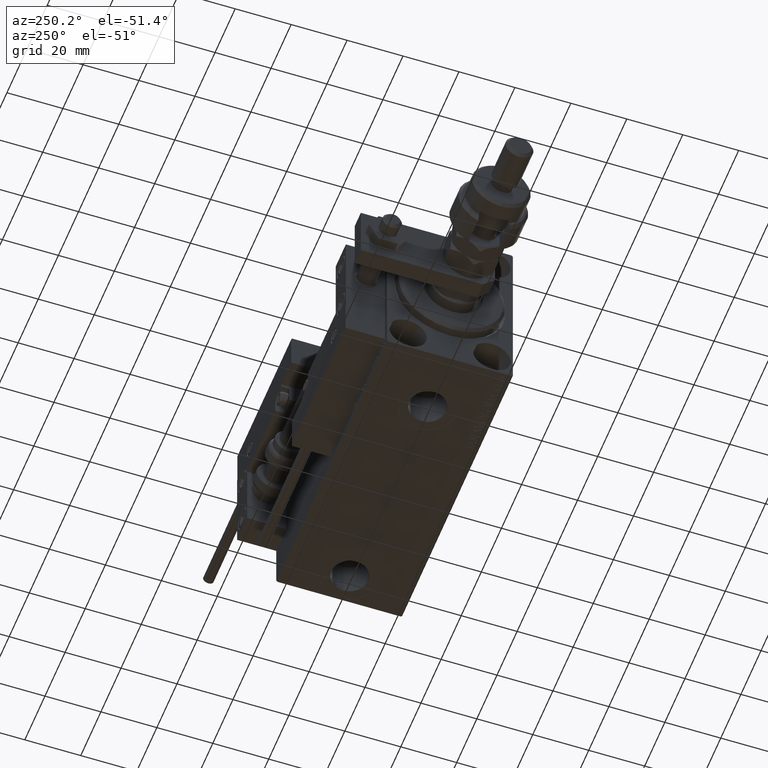
[diagram: clean part render]
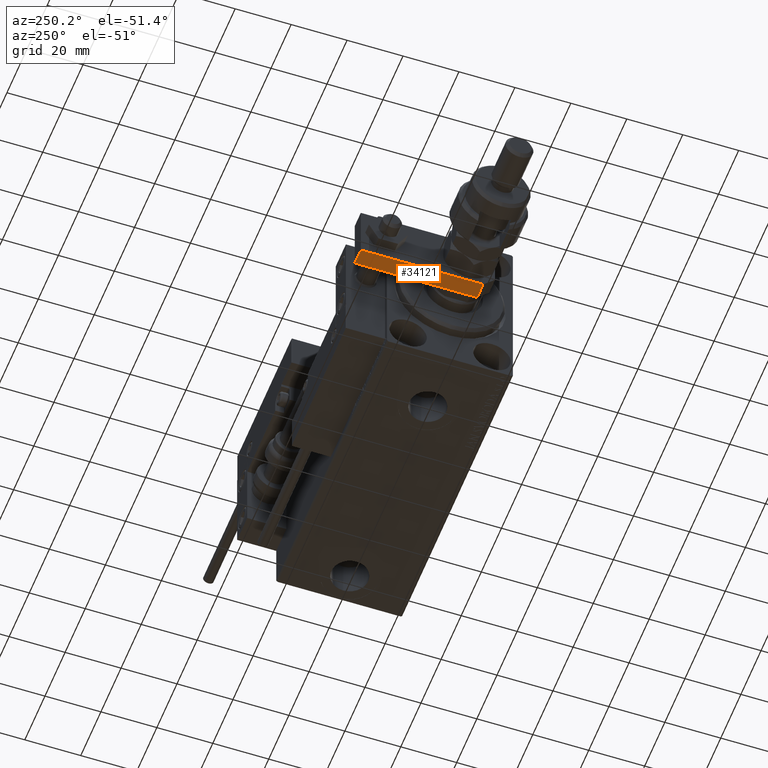
[diagram: same view with one face highlighted and labeled with its STEP entity id]
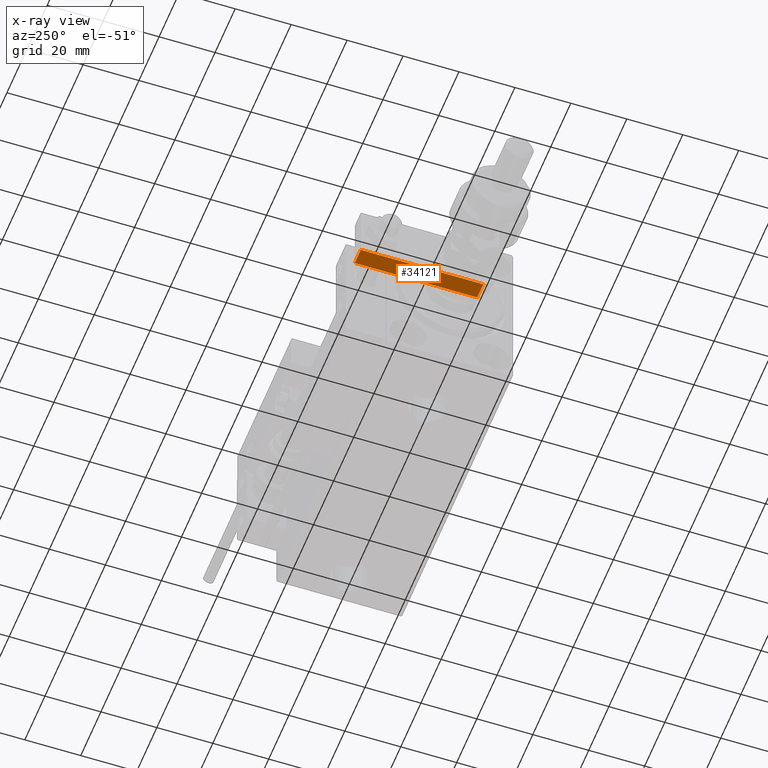
[diagram: x-ray of the same camera — body ghosted, the highlighted face saturated]
A machine part, auxiliary view. The second image highlights one B-rep face of the part: STEP entity #34121.
The next image is the same camera in x-ray: the body ghosted, the highlighted face saturated — about 0% of this face is hidden behind the body in this view.
In plain terms, the highlighted planar face has unit normal (0, -0, 1).
Its self-contained STEP definition (entity closure, byte-faithful):
#916 = LINE ( 'NONE', #21566, #34888 ) ;
#2460 = ORIENTED_EDGE ( 'NONE', *, *, #40272, .T. ) ;
#3364 = FACE_OUTER_BOUND ( 'NONE', #31961, .T. ) ;
#3745 = DIRECTION ( 'NONE',  ( -1.084202172485504434E-16, -1.000000000000000000, 0.000000000000000000 ) ) ;
#4966 = DIRECTION ( 'NONE',  ( 0.000000000000000000, 0.000000000000000000, 1.000000000000000000 ) ) ;
#6136 = VECTOR ( 'NONE', #4966, 1000.000000000000000 ) ;
#6955 = CARTESIAN_POINT ( 'NONE',  ( -10.00000000000000000, 48.00000000000000000, 6.000000000000000000 ) ) ;
#8138 = CARTESIAN_POINT ( 'NONE',  ( -10.00000000000000000, 48.00000000000000000, 6.000000000000000000 ) ) ;
#11337 = LINE ( 'NONE', #37656, #32946 ) ;
#13069 = VERTEX_POINT ( 'NONE', #26589 ) ;
#13601 = EDGE_CURVE ( 'NONE', #13069, #16616, #42602, .T. ) ;
#15255 = AXIS2_PLACEMENT_3D ( 'NONE', #41284, #15735, #20690 ) ;
#15735 = DIRECTION ( 'NONE',  ( 1.000000000000000000, -1.084202172485504434E-16, 0.000000000000000000 ) ) ;
#16608 = ORIENTED_EDGE ( 'NONE', *, *, #45620, .T. ) ;
#16616 = VERTEX_POINT ( 'NONE', #45997 ) ;
#19181 = CARTESIAN_POINT ( 'NONE',  ( -10.00000000000000000, 48.00000000000000000, 0.000000000000000000 ) ) ;
#20690 = DIRECTION ( 'NONE',  ( 1.084202172485504434E-16, 1.000000000000000000, 0.000000000000000000 ) ) ;
#21566 = CARTESIAN_POINT ( 'NONE',  ( -10.00000000000000000, 48.00000000000000000, 0.000000000000000000 ) ) ;
#23504 = EDGE_CURVE ( 'NONE', #40250, #16616, #36714, .T. ) ;
#26589 = CARTESIAN_POINT ( 'NONE',  ( -10.00000000000000533, 4.240000000000021529, 0.000000000000000000 ) ) ;
#27845 = DIRECTION ( 'NONE',  ( -0.000000000000000000, -0.000000000000000000, -1.000000000000000000 ) ) ;
#29968 = CARTESIAN_POINT ( 'NONE',  ( -10.00000000000000533, 4.240000000000021529, 6.000000000000000000 ) ) ;
#30322 = DIRECTION ( 'NONE',  ( -1.084202172485504434E-16, -1.000000000000000000, 0.000000000000000000 ) ) ;
#31961 = EDGE_LOOP ( 'NONE', ( #16608, #53960, #45945, #2460 ) ) ;
#32946 = VECTOR ( 'NONE', #27845, 1000.000000000000000 ) ;
#34121 = ADVANCED_FACE ( 'NONE', ( #3364 ), #36611, .F. ) ;
#34888 = VECTOR ( 'NONE', #30322, 1000.000000000000000 ) ;
#36611 = PLANE ( 'NONE',  #15255 ) ;
#36714 = LINE ( 'NONE', #8138, #52962 ) ;
#37656 = CARTESIAN_POINT ( 'NONE',  ( -10.00000000000000000, 48.00000000000000000, 6.000000000000000000 ) ) ;
#39461 = VERTEX_POINT ( 'NONE', #19181 ) ;
#40250 = VERTEX_POINT ( 'NONE', #6955 ) ;
#40272 = EDGE_CURVE ( 'NONE', #40250, #39461, #11337, .T. ) ;
#41284 = CARTESIAN_POINT ( 'NONE',  ( -10.00000000000000000, 48.00000000000000000, 6.000000000000000000 ) ) ;
#42602 = LINE ( 'NONE', #29968, #6136 ) ;
#45620 = EDGE_CURVE ( 'NONE', #39461, #13069, #916, .T. ) ;
#45945 = ORIENTED_EDGE ( 'NONE', *, *, #23504, .F. ) ;
#45997 = CARTESIAN_POINT ( 'NONE',  ( -10.00000000000000533, 4.240000000000021529, 6.000000000000000000 ) ) ;
#52962 = VECTOR ( 'NONE', #3745, 1000.000000000000000 ) ;
#53960 = ORIENTED_EDGE ( 'NONE', *, *, #13601, .T. ) ;